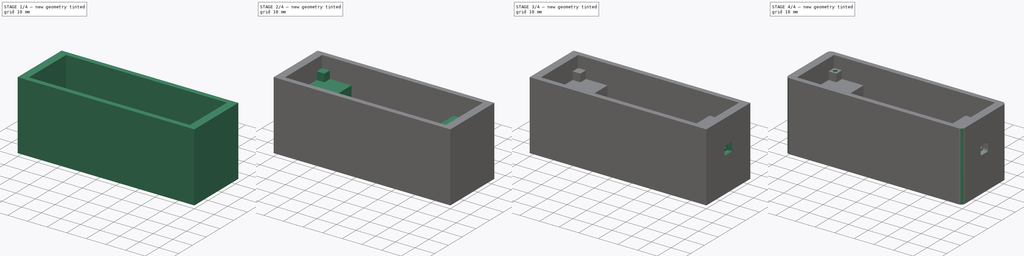
[diagram: build sequence overview — one tinted view per stage of 4, left to right]
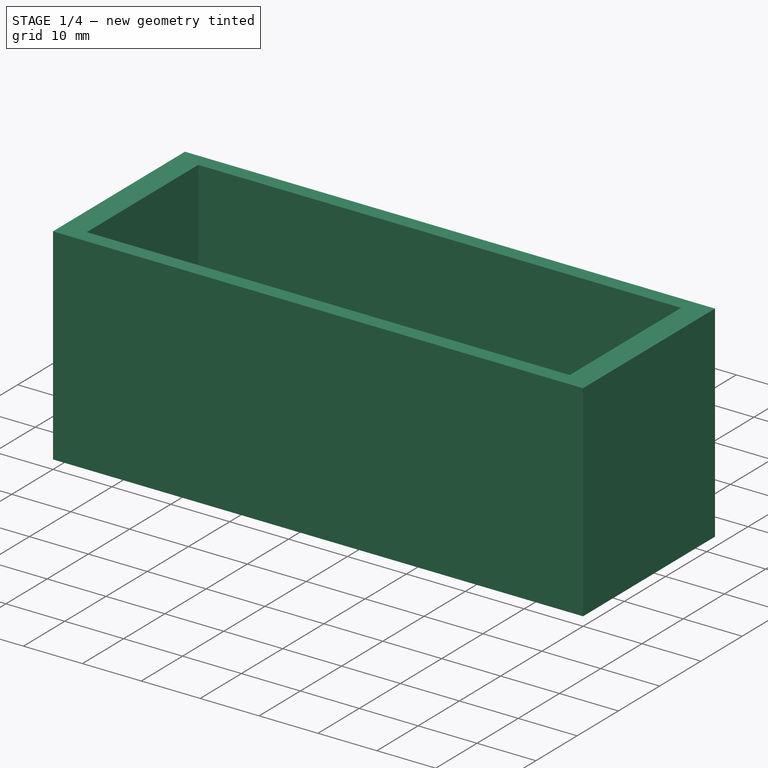
[diagram: stage 1 of 4 — iso view after this stage's code; geometry added in this stage tinted green]
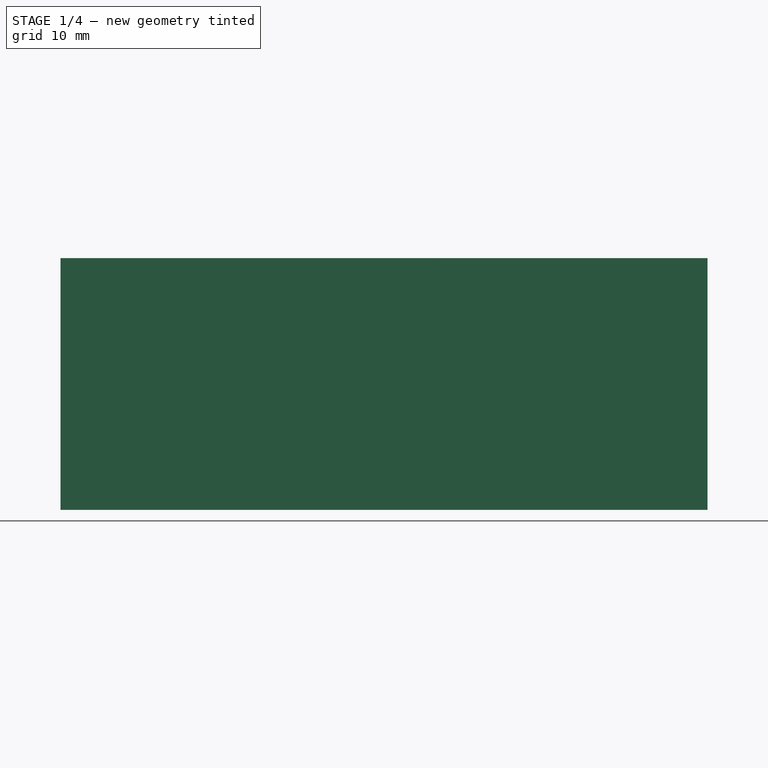
[diagram: stage 1 of 4 — front view after this stage's code; geometry added in this stage tinted green]
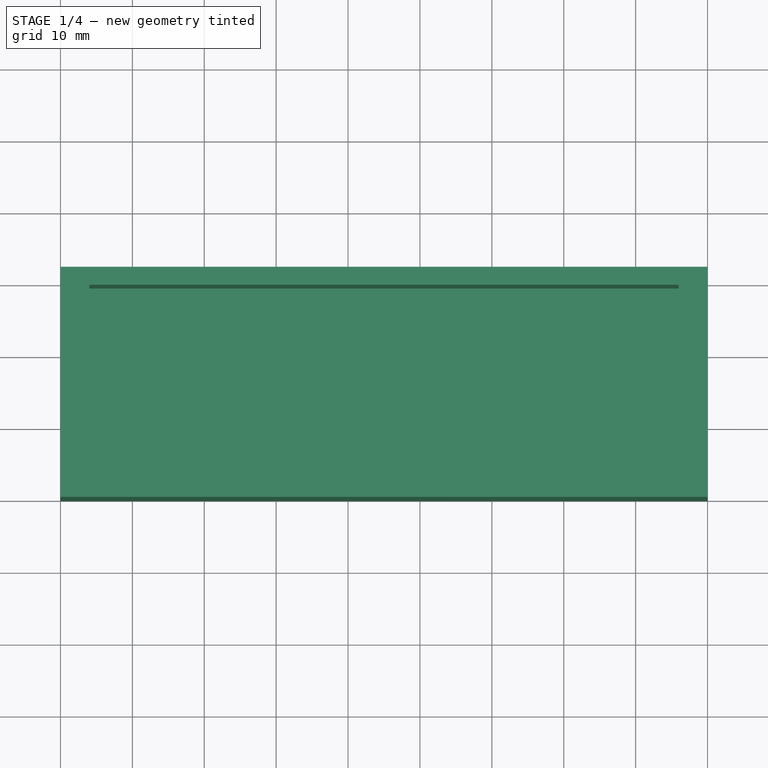
[diagram: stage 1 of 4 — top view after this stage's code; geometry added in this stage tinted green]
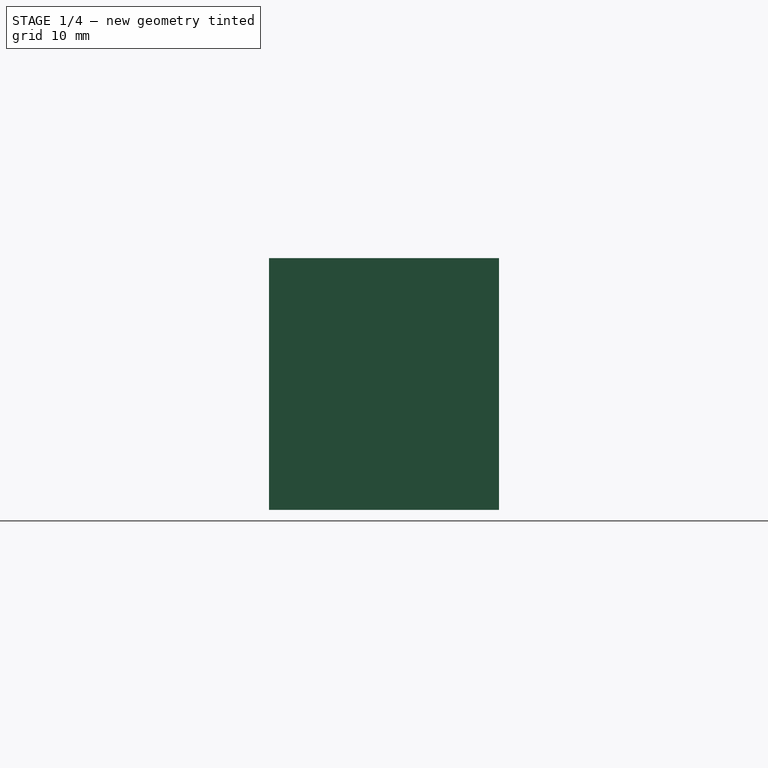
[diagram: stage 1 of 4 — right view after this stage's code; geometry added in this stage tinted green]
FCSTD DOCUMENT  (FreeCAD 0.17R13541 (Git))
Label: LaserTrip
License: All rights reserved
LicenseURL: http://en.wikipedia.org/wiki/All_rights_reserved
objects: Sketcher::SketchObject×7, PartDesign::Pocket×5, PartDesign::Pad×2, PartDesign::Fillet×2, Part::Box×1, PartDesign::FeatureBase×1, PartDesign::Body×1
note: 26 computed .brp shape members not serialized (recipe doc carries the construction recipe); baked Part::Feature solids carry a one-line shape summary decoded from their .brp

FEATURE [Part::Box] Box  label="Cube"
  AttacherType = Attacher::AttachEngine3D
  Height = 35
  Length = 90
  Width = 32
FEATURE [PartDesign::FeatureBase] BaseFeature
  BaseFeature = -> Box
FEATURE [Sketcher::SketchObject] Sketch  label="DeepSketch"
  ExternalGeometry = -> [BaseFeature]
  MapMode = 5
  Placement = pos=(0,0,35) rot=(0,0,1;0rad)
  Support = -> [BaseFeature]
  sketch-geometry (8):
    g0: LineSegment StartX=4 StartY=29.5 StartZ=0 EndX=86 EndY=29.5 EndZ=0
    g1: LineSegment StartX=86 StartY=29.5 StartZ=0 EndX=86 EndY=2.5 EndZ=0
    g2: LineSegment StartX=86 StartY=2.5 StartZ=0 EndX=4 EndY=2.5 EndZ=0
    g3: LineSegment StartX=4 StartY=2.5 StartZ=0 EndX=4 EndY=29.5 EndZ=0
    g4: GeomPoint X=4 Y=16 Z=0
    g5: GeomPoint X=45 Y=2.5 Z=0
    g6: GeomPoint X=0 Y=16 Z=0
    g7: GeomPoint X=45 Y=0 Z=0
  constraints (20):
    c: Coincident(g0,g1)
    c: Coincident(g1,g2)
    c: Coincident(g2,g3)
    c: Coincident(g3,g0)
    c: Horizontal(g0)
    c: Horizontal(g2)
    c: Vertical(g1)
    c: Vertical(g3)
    c: Distance(g3) = 27
    c: Distance(g0) = 82
    c: PointOnObject(g4,g3)
    c: PointOnObject(g5,g2)
    c: Symmetric(g2,g1,g5)
    c: Symmetric(g0,g2,g4)
    c: PointOnObject(g6,g-3)
    c: PointOnObject(g7,g-4)
    c: Symmetric(g-1,g-4,g7)
    c: Vertical(g5,g7)
    c: Symmetric(g-3,g-1,g6)
    c: Horizontal(g6,g4)
FEATURE [PartDesign::Pocket] Pocket
  BaseFeature = -> BaseFeature
  Length = 30
  Length2 = 100
  Profile = -> Sketch
  Type = 0
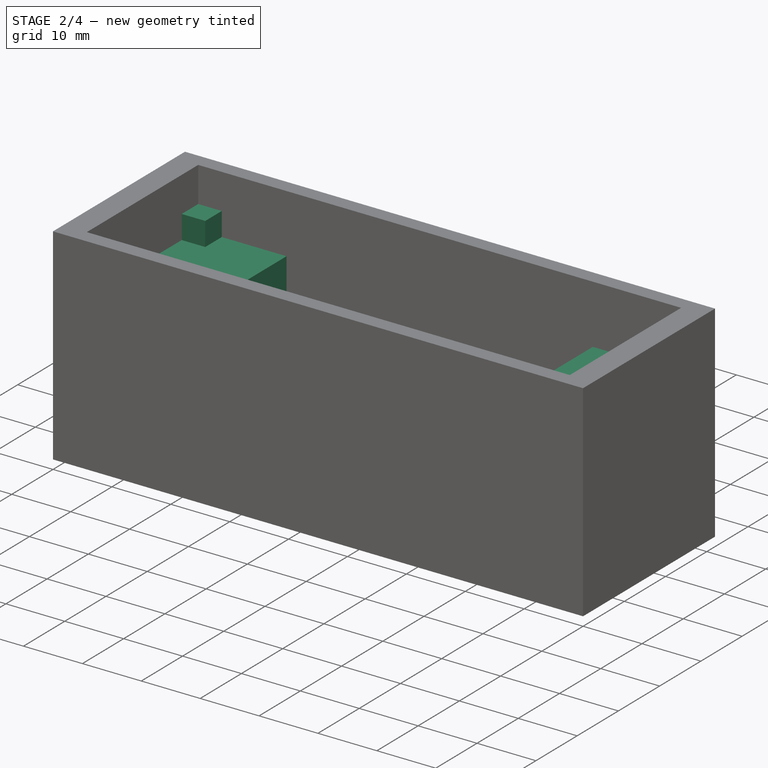
[diagram: stage 2 of 4 — iso view after this stage's code; geometry added in this stage tinted green]
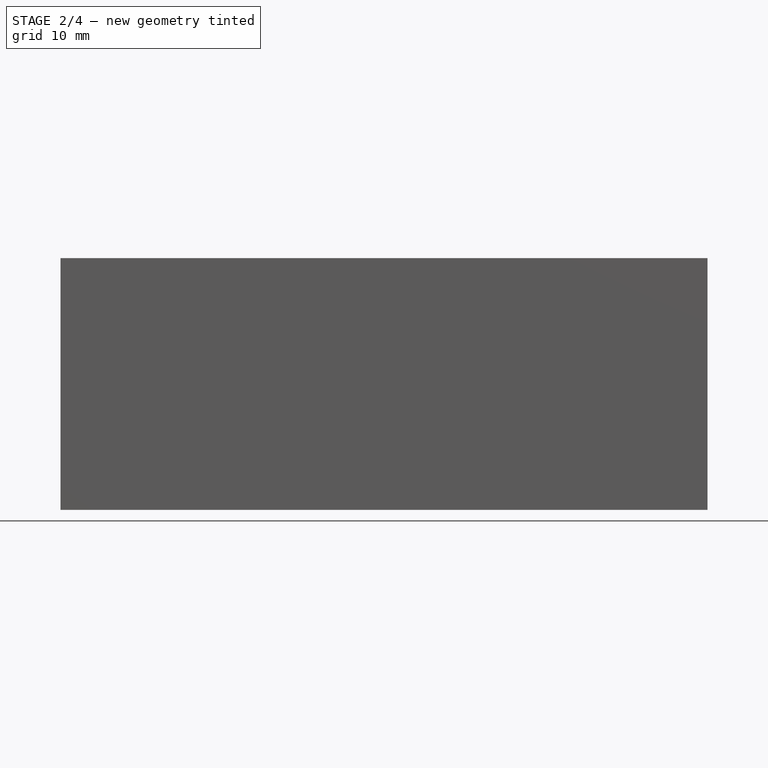
[diagram: stage 2 of 4 — front view after this stage's code; geometry added in this stage tinted green]
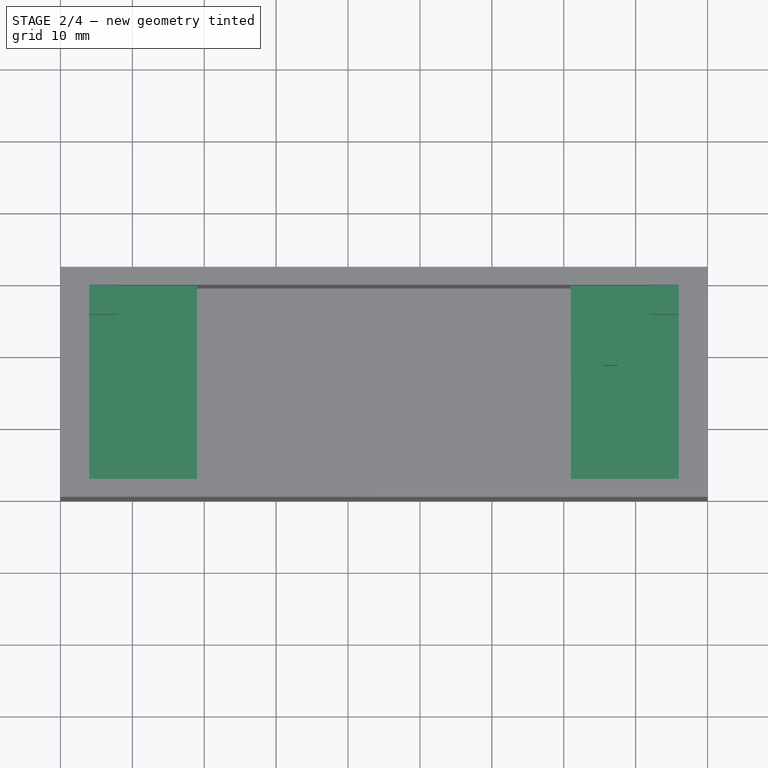
[diagram: stage 2 of 4 — top view after this stage's code; geometry added in this stage tinted green]
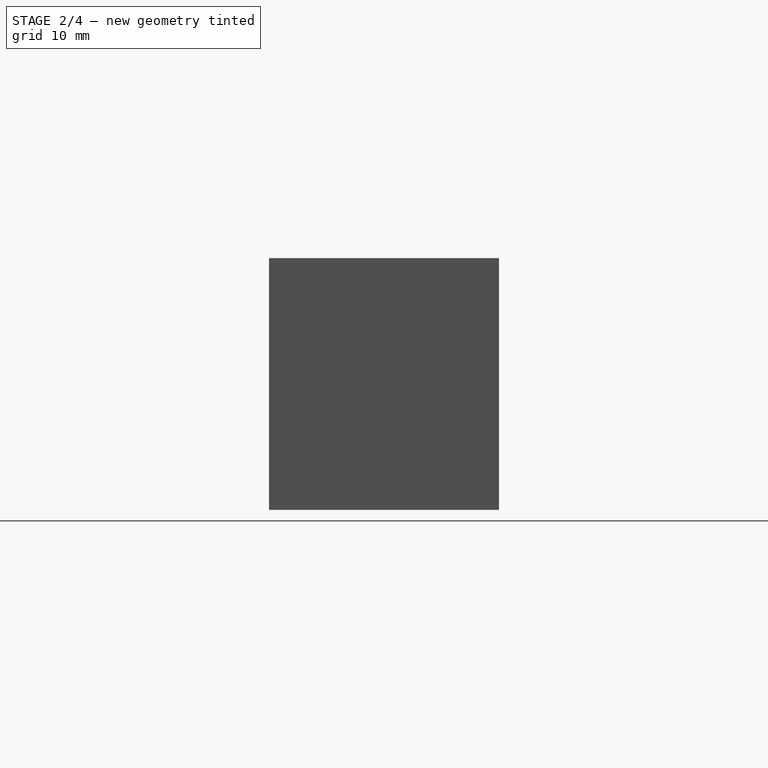
[diagram: stage 2 of 4 — right view after this stage's code; geometry added in this stage tinted green]
FEATURE [Sketcher::SketchObject] Sketch001  label="BatterySketch"
  ExternalGeometry = -> [Pocket]
  MapMode = 5
  Placement = pos=(0,0,5) rot=(0,0,1;0rad)
  Support = -> [Pocket]
  sketch-geometry (9):
    g0: LineSegment StartX=4 StartY=29.5 StartZ=0 EndX=19 EndY=29.5 EndZ=0
    g1: LineSegment StartX=19 StartY=29.5 StartZ=0 EndX=19 EndY=2.5 EndZ=0
    g2: LineSegment StartX=19 StartY=2.5 StartZ=0 EndX=4 EndY=2.5 EndZ=0
    g3: LineSegment StartX=4 StartY=2.5 StartZ=0 EndX=4 EndY=29.5 EndZ=0
    g4: LineSegment StartX=71 StartY=29.5 StartZ=0 EndX=86 EndY=29.5 EndZ=0
    g5: LineSegment StartX=86 StartY=29.5 StartZ=0 EndX=86 EndY=2.5 EndZ=0
    g6: LineSegment StartX=86 StartY=2.5 StartZ=0 EndX=71 EndY=2.5 EndZ=0
    g7: LineSegment StartX=71 StartY=2.5 StartZ=0 EndX=71 EndY=29.5 EndZ=0
    g8: GeomPoint X=45 Y=29.5 Z=0
  constraints (23):
    c: Coincident(g0,g1)
    c: Coincident(g1,g2)
    c: Coincident(g2,g3)
    c: Coincident(g3,g0)
    c: Horizontal(g0)
    c: Horizontal(g2)
    c: Vertical(g1)
    c: Vertical(g3)
    c: Coincident(g4,g5)
    c: Coincident(g5,g6)
    c: Coincident(g6,g7)
    c: Coincident(g7,g4)
    c: Horizontal(g4)
    c: Horizontal(g6)
    c: Vertical(g5)
    c: Vertical(g7)
    c: Coincident(g4,g-6)
    c: Coincident(g5,g-6)
    c: Coincident(g0,g-4)
    c: Coincident(g2,g-5)
    c: Symmetric(g0,g4,g8)
    c: Symmetric(g0,g4,g8)
    c: Distance(g0,g4) = 52
FEATURE [PartDesign::Pad] Pad
  BaseFeature = -> Pocket
  Length = 20
  Length2 = 100
  Profile = -> Sketch001
  Type = 0
FEATURE [Sketcher::SketchObject] Sketch002  label="SmallMountSketch"
  ExternalGeometry = -> [Pad]
  MapMode = 5
  Placement = pos=(0,0,25) rot=(0,0,1;0rad)
  Support = -> [Pad]
  sketch-geometry (16):
    g0: LineSegment StartX=4 StartY=29.5 StartZ=0 EndX=8 EndY=29.5 EndZ=0
    g1: LineSegment StartX=8 StartY=29.5 StartZ=0 EndX=8 EndY=25.5 EndZ=0
    g2: LineSegment StartX=8 StartY=25.5 StartZ=0 EndX=4 EndY=25.5 EndZ=0
    g3: LineSegment StartX=4 StartY=25.5 StartZ=0 EndX=4 EndY=29.5 EndZ=0
    g4: LineSegment StartX=4 StartY=6.5 StartZ=0 EndX=8 EndY=6.5 EndZ=0
    g5: LineSegment StartX=8 StartY=6.5 StartZ=0 EndX=8 EndY=2.5 EndZ=0
    g6: LineSegment StartX=8 StartY=2.5 StartZ=0 EndX=4 EndY=2.5 EndZ=0
    g7: LineSegment StartX=4 StartY=2.5 StartZ=0 EndX=4 EndY=6.5 EndZ=0
    g8: LineSegment StartX=82 StartY=29.5 StartZ=0 EndX=86 EndY=29.5 EndZ=0
    g9: LineSegment StartX=86 StartY=29.5 StartZ=0 EndX=86 EndY=25.5 EndZ=0
    g10: LineSegment StartX=86 StartY=25.5 StartZ=0 EndX=82 EndY=25.5 EndZ=0
    g11: LineSegment StartX=82 StartY=25.5 StartZ=0 EndX=82 EndY=29.5 EndZ=0
    g12: LineSegment StartX=82 StartY=6.5 StartZ=0 EndX=86 EndY=6.5 EndZ=0
    g13: LineSegment StartX=86 StartY=6.5 StartZ=0 EndX=86 EndY=2.5 EndZ=0
    g14: LineSegment StartX=86 StartY=2.5 StartZ=0 EndX=82 EndY=2.5 EndZ=0
    g15: LineSegment StartX=82 StartY=2.5 StartZ=0 EndX=82 EndY=6.5 EndZ=0
  constraints (44):
    c: Coincident(g0,g1)
    c: Coincident(g1,g2)
    c: Coincident(g2,g3)
    c: Coincident(g3,g0)
    c: Horizontal(g0)
    c: Horizontal(g2)
    c: Vertical(g1)
    c: Vertical(g3)
    c: Coincident(g4,g5)
    c: Coincident(g5,g6)
    c: Coincident(g6,g7)
    c: Coincident(g7,g4)
    c: Horizontal(g4)
    c: Horizontal(g6)
    c: Vertical(g5)
    c: Vertical(g7)
    c: Coincident(g8,g9)
    c: Coincident(g9,g10)
    c: Coincident(g10,g11)
    c: Coincident(g11,g8)
    c: Horizontal(g8)
    c: Horizontal(g10)
    c: Vertical(g9)
    c: Vertical(g11)
    c: Coincident(g12,g13)
    c: Coincident(g13,g14)
    c: Coincident(g14,g15)
    c: Coincident(g15,g12)
    c: Horizontal(g12)
    c: Horizontal(g14)
    c: Vertical(g13)
    c: Vertical(g15)
    c: Coincident(g0,g-5)
    c: Coincident(g6,g-6)
    c: Coincident(g8,g-8)
    c: Coincident(g13,g-8)
    c: Equal(g2,g1)
    c: Equal(g5,g4)
    c: Equal(g10,g11)
    c: Equal(g15,g12)
    c: Equal(g2,g4)
    c: Equal(g4,g12)
    c: Equal(g12,g10)
    c: Distance(g11) = 4
FEATURE [PartDesign::Pad] Pad001  label="PBCMount"
  BaseFeature = -> Pad
  Length = 4
  Length2 = 100
  Profile = -> Sketch002
  Type = 0
FEATURE [Sketcher::SketchObject] Sketch003  label="TunnelSketch"
  ExternalGeometry = -> [Pad001]
  MapMode = 5
  Placement = pos=(0,0,25) rot=(0,0,1;0rad)
  Support = -> [Pad001]
  sketch-geometry (7):
    g0: LineSegment StartX=75.5 StartY=18.5 StartZ=0 EndX=77.5 EndY=18.5 EndZ=0
    g1: LineSegment StartX=77.5 StartY=18.5 StartZ=0 EndX=77.5 EndY=13.5 EndZ=0
    g2: LineSegment StartX=77.5 StartY=13.5 StartZ=0 EndX=75.5 EndY=13.5 EndZ=0
    g3: LineSegment StartX=75.5 StartY=13.5 StartZ=0 EndX=75.5 EndY=18.5 EndZ=0
    g4: GeomPoint X=76.5 Y=16 Z=0
    g5: GeomPoint X=76.5 Y=29.5 Z=0
    g6: GeomPoint X=76.5 Y=2.5 Z=0
  constraints (16):
    c: Coincident(g0,g1)
    c: Coincident(g1,g2)
    c: Coincident(g2,g3)
    c: Coincident(g3,g0)
    c: Horizontal(g0)
    c: Horizontal(g2)
    c: Vertical(g1)
    c: Vertical(g3)
    c: Distance(g2) = 2
    c: Distance(g1) = 5
    c: Symmetric(g0,g1,g4)
    c: PointOnObject(g5,g-3)
    c: PointOnObject(g6,g-4)
    c: Symmetric(g-4,g-4,g6)
    c: Symmetric(g-3,g-3,g5)
    c: Symmetric(g5,g6,g4)
FEATURE [PartDesign::Pocket] Pocket001  label="InnerTunnel"
  BaseFeature = -> Pad001
  Length = 6
  Length2 = 100
  Profile = -> Sketch003
  Type = 0
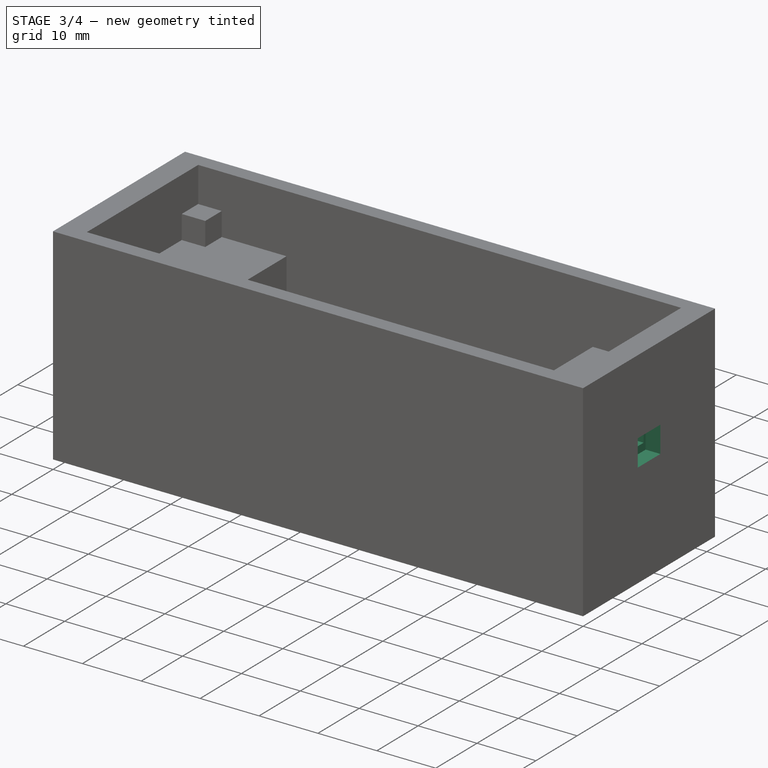
[diagram: stage 3 of 4 — iso view after this stage's code; geometry added in this stage tinted green]
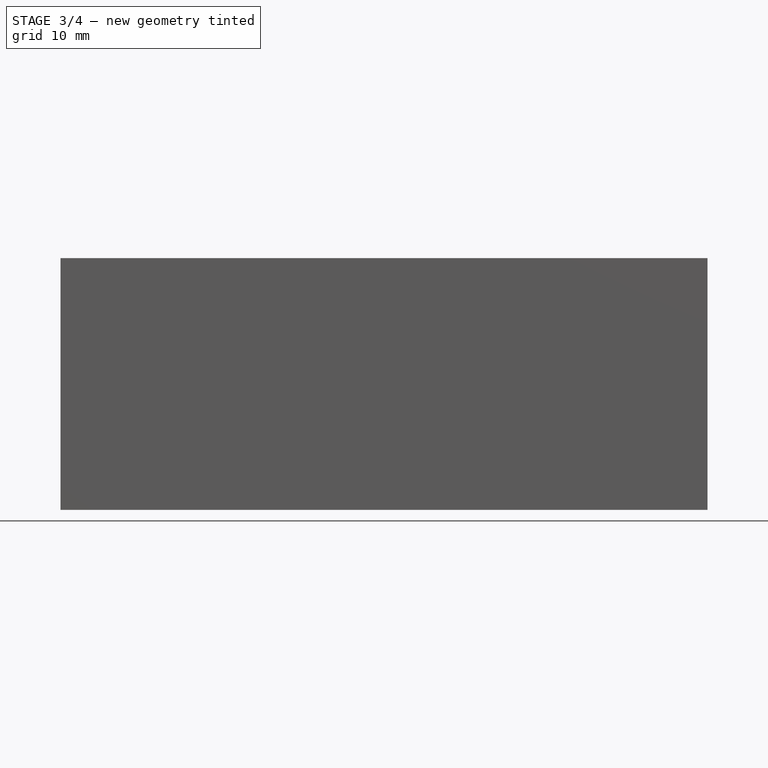
[diagram: stage 3 of 4 — front view after this stage's code; geometry added in this stage tinted green]
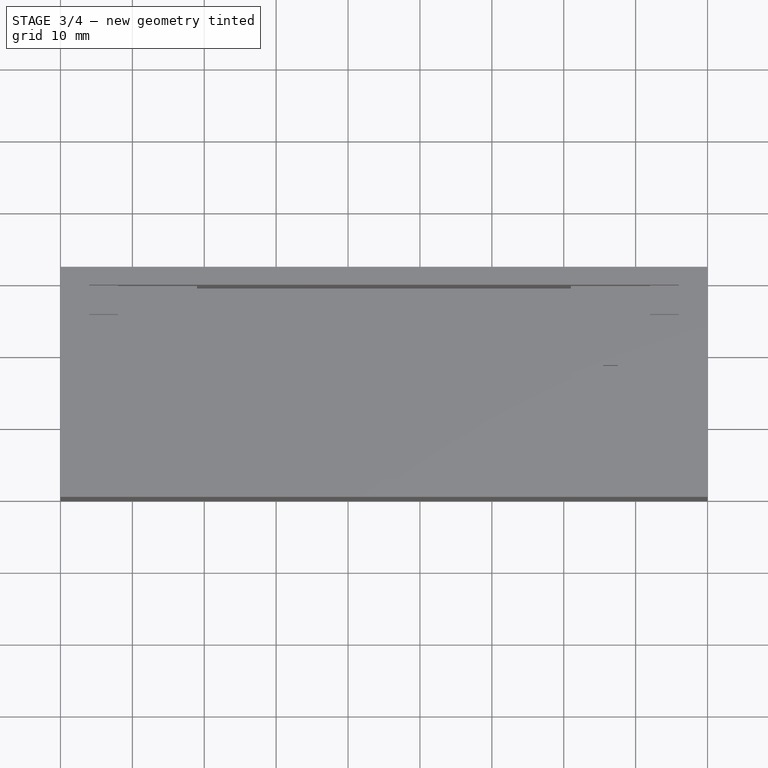
[diagram: stage 3 of 4 — top view after this stage's code; geometry added in this stage tinted green]
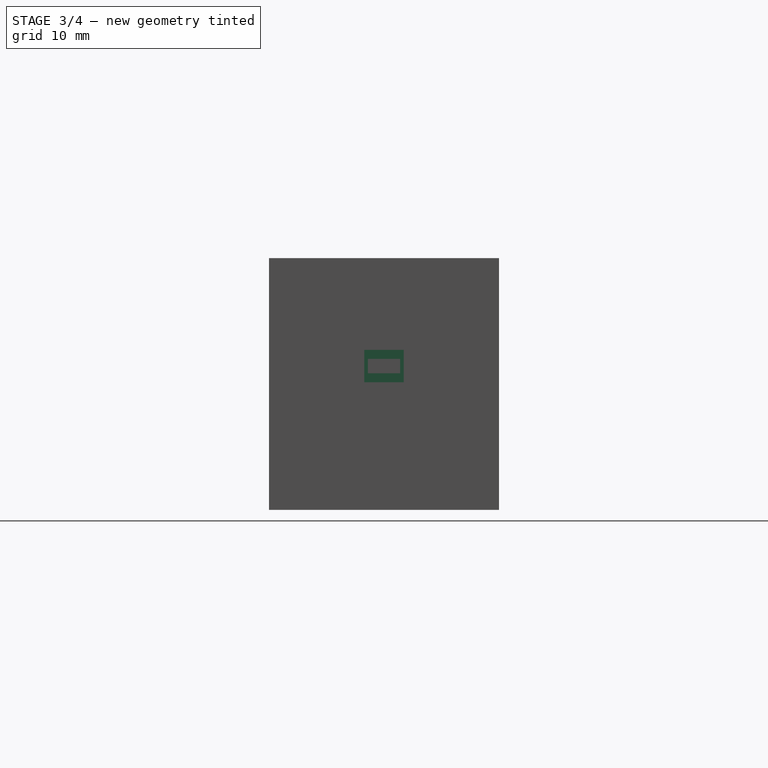
[diagram: stage 3 of 4 — right view after this stage's code; geometry added in this stage tinted green]
FEATURE [Sketcher::SketchObject] Sketch004  label="PhotoOutSketch"
  ExternalGeometry = -> [Pocket001]
  MapMode = 5
  Placement = pos=(90,0,0) rot=(0.57735,0.57735,0.57735;2.0944rad)
  Support = -> [Pocket001]
  sketch-geometry (7):
    g0: LineSegment StartX=13.75 StartY=21 StartZ=0 EndX=18.25 EndY=21 EndZ=0
    g1: LineSegment StartX=18.25 StartY=21 StartZ=0 EndX=18.25 EndY=19 EndZ=0
    g2: LineSegment StartX=18.25 StartY=19 StartZ=0 EndX=13.75 EndY=19 EndZ=0
    g3: LineSegment StartX=13.75 StartY=19 StartZ=0 EndX=13.75 EndY=21 EndZ=0
    g4: GeomPoint X=16 Y=20 Z=0
    g5: GeomPoint X=0 Y=20 Z=0
    g6: GeomPoint X=32 Y=20 Z=0
  constraints (16):
    c: Coincident(g0,g1)
    c: Coincident(g1,g2)
    c: Coincident(g2,g3)
    c: Coincident(g3,g0)
    c: Horizontal(g0)
    c: Horizontal(g2)
    c: Vertical(g1)
    c: Vertical(g3)
    c: Distance(g0) = 4.5
    c: Distance(g1) = 2
    c: Symmetric(g0,g1,g4)
    c: PointOnObject(g5,g-3)
    c: PointOnObject(g6,g-4)
    c: Horizontal(g6,g5)
    c: Symmetric(g5,g6,g4)
    c: Distance(g-4,g6) = 15
FEATURE [PartDesign::Pocket] Pocket002  label="Tunnel"
  BaseFeature = -> Pocket001
  Length = 13
  Length2 = 100
  Profile = -> Sketch004
  Type = 0
FEATURE [Sketcher::SketchObject] Sketch005  label="PhotoSketch"
  ExternalGeometry = -> [Pocket002]
  MapMode = 5
  Placement = pos=(90,0,0) rot=(0.57735,0.57735,0.57735;2.0944rad)
  Support = -> [Pocket002]
  sketch-geometry (5):
    g0: GeomPoint X=16 Y=20 Z=0
    g1: LineSegment StartX=13.25 StartY=22.25 StartZ=0 EndX=18.75 EndY=22.25 EndZ=0
    g2: LineSegment StartX=18.75 StartY=22.25 StartZ=0 EndX=18.75 EndY=17.75 EndZ=0
    g3: LineSegment StartX=18.75 StartY=17.75 StartZ=0 EndX=13.25 EndY=17.75 EndZ=0
    g4: LineSegment StartX=13.25 StartY=17.75 StartZ=0 EndX=13.25 EndY=22.25 EndZ=0
  constraints (12):
    c: Symmetric(g-5,g-6,g0)
    c: Coincident(g1,g2)
    c: Coincident(g2,g3)
    c: Coincident(g3,g4)
    c: Coincident(g4,g1)
    c: Horizontal(g1)
    c: Horizontal(g3)
    c: Vertical(g2)
    c: Vertical(g4)
    c: Distance(g2) = 4.5
    c: Distance(g1) = 5.5
    c: Symmetric(g1,g3,g0)
FEATURE [PartDesign::Pocket] Pocket003  label="Photo"
  BaseFeature = -> Pocket002
  Length = 2.5
  Length2 = 100
  Profile = -> Sketch005
  Type = 0
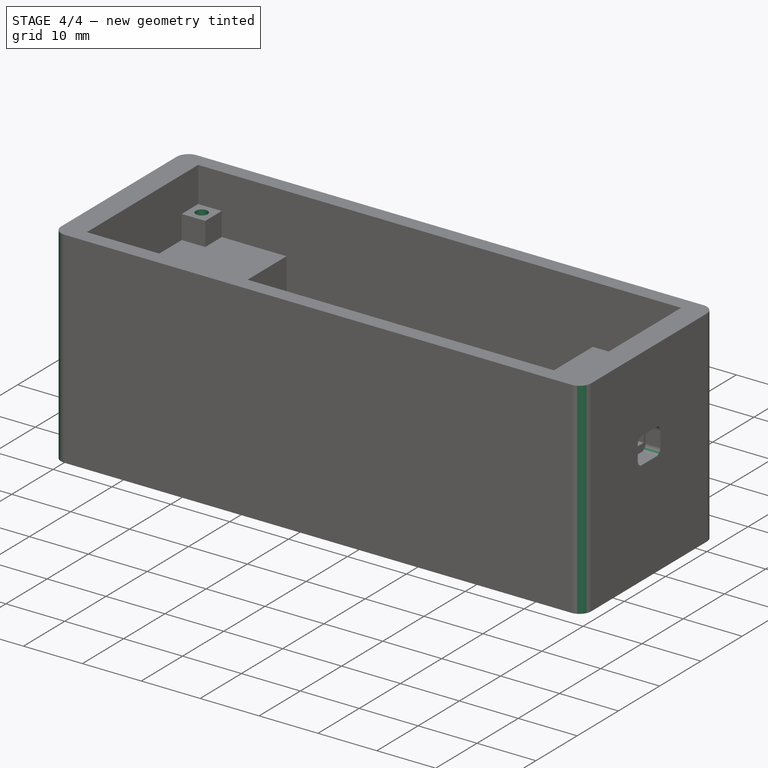
[diagram: stage 4 of 4 — iso view after this stage's code; geometry added in this stage tinted green]
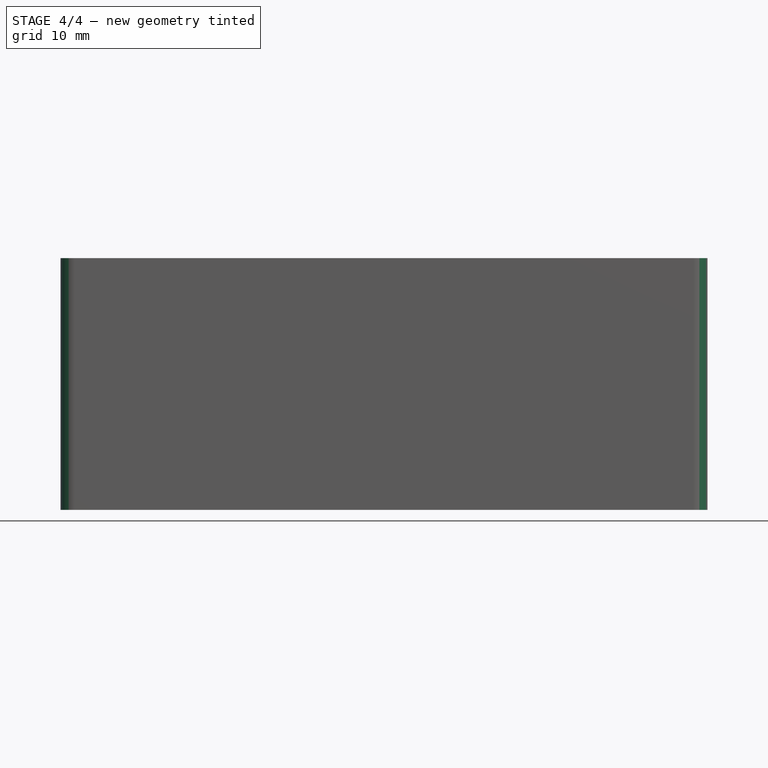
[diagram: stage 4 of 4 — front view after this stage's code; geometry added in this stage tinted green]
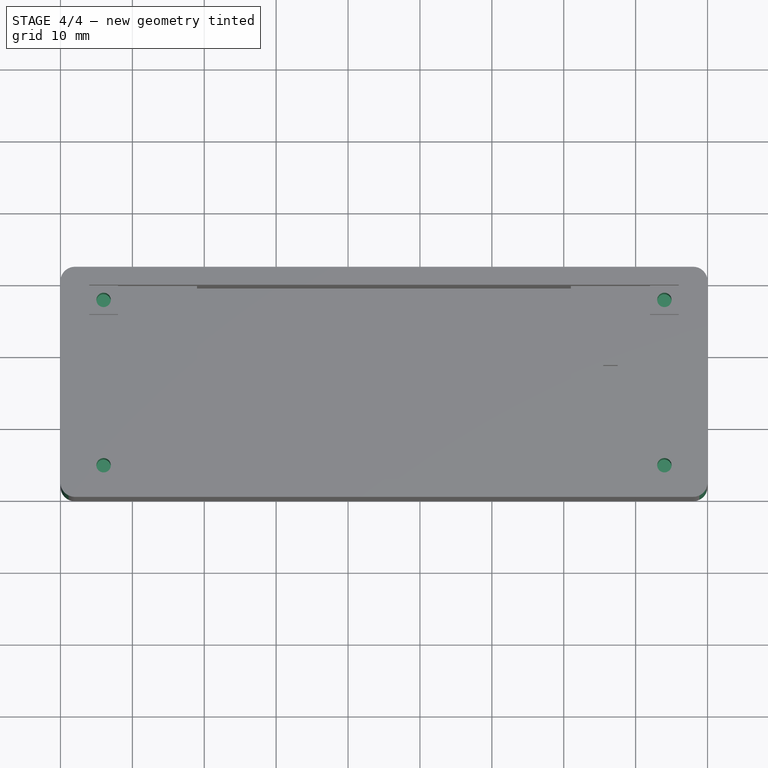
[diagram: stage 4 of 4 — top view after this stage's code; geometry added in this stage tinted green]
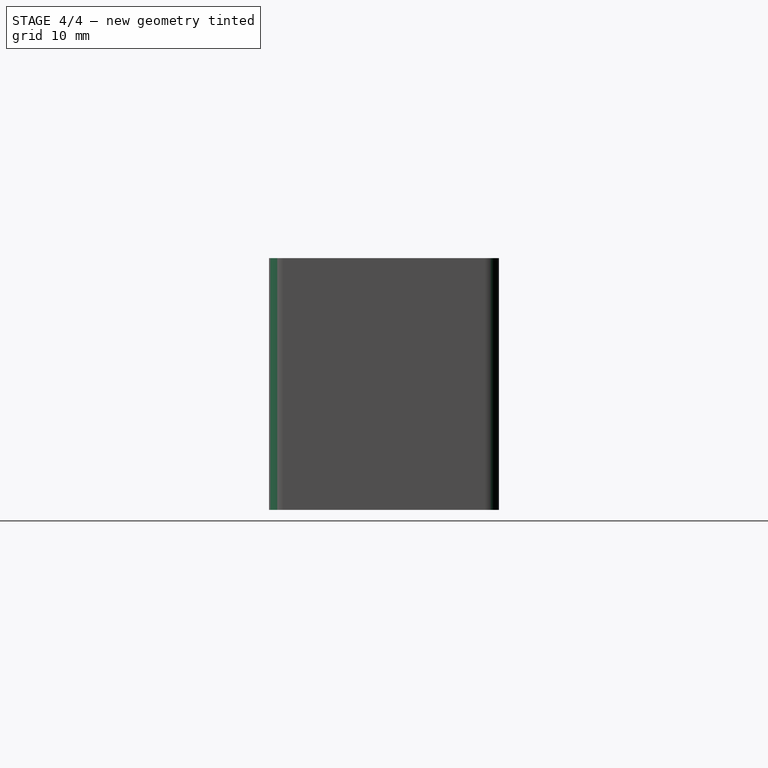
[diagram: stage 4 of 4 — right view after this stage's code; geometry added in this stage tinted green]
FEATURE [PartDesign::Fillet] Fillet
  Base = -> Pocket003 [Edge54,Edge58,Edge53,Edge56]
  BaseFeature = -> Pocket003
  Radius = 1
FEATURE [Sketcher::SketchObject] Sketch006  label="ScrewsSketch"
  ExternalGeometry = -> [Fillet]
  MapMode = 5
  Placement = pos=(0,0,29) rot=(0,0,1;0rad)
  Support = -> [Fillet]
  sketch-geometry (4):
    g0: Circle CenterX=84 CenterY=27.5 CenterZ=0 NormalX=0 NormalY=0 NormalZ=1 AngleXU=0 Radius=1
    g1: Circle CenterX=84 CenterY=4.5 CenterZ=0 NormalX=0 NormalY=0 NormalZ=1 AngleXU=0 Radius=1
    g2: Circle CenterX=6 CenterY=27.5 CenterZ=0 NormalX=0 NormalY=0 NormalZ=1 AngleXU=0 Radius=1
    g3: Circle CenterX=6 CenterY=4.5 CenterZ=0 NormalX=0 NormalY=0 NormalZ=1 AngleXU=0 Radius=1
  constraints (8):
    c: Radius(g0) = 1
    c: Symmetric(g-3,g-4,g0)
    c: Symmetric(g-6,g-5,g1)
    c: Equal(g1,g0)
    c: Symmetric(g-8,g-7,g2)
    c: Symmetric(g-9,g-10,g3)
    c: Equal(g2,g3)
    c: Equal(g3,g1)
FEATURE [PartDesign::Pocket] Pocket004  label="ScrewsPocket"
  BaseFeature = -> Fillet
  Length = 12
  Length2 = 100
  Profile = -> Sketch006
  Type = 0
FEATURE [PartDesign::Fillet] Fillet001
  Base = -> Pocket004 [Edge31,Edge9,Edge12,Edge40]
  BaseFeature = -> Pocket004
  Radius = 2
FEATURE [PartDesign::Body] Body
  BaseFeature = -> Box
  Group = -> [BaseFeature,Sketch,Pocket,Sketch001,Pad,Sketch002,Pad001,Sketch003,Pocket001,Sketch004,Pocket002,Sketch005,Pocket003,Fillet,Sketch006,Pocket004,Fillet001]
  Origin = -> Origin
  Tip = -> Fillet001
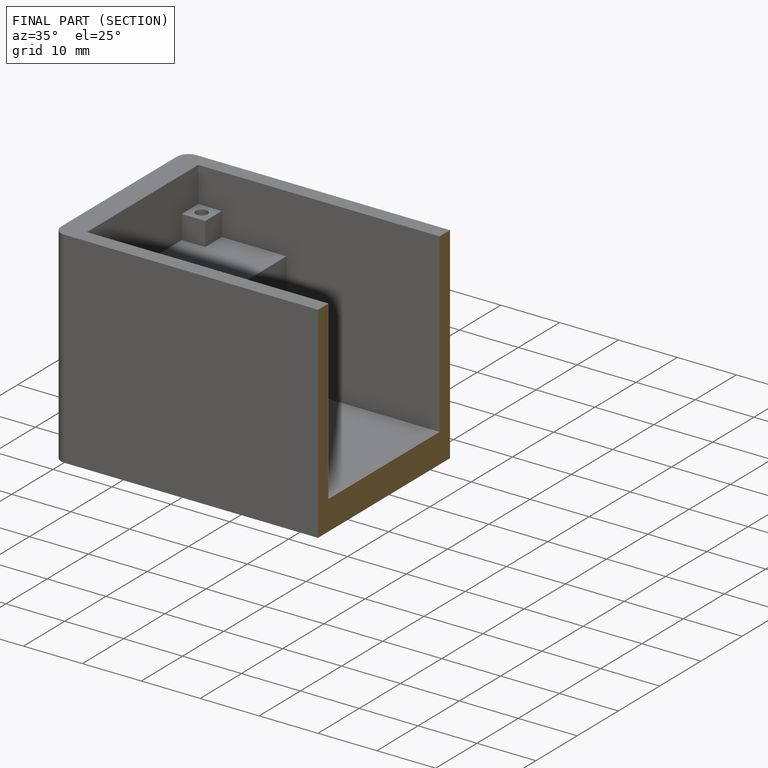
[diagram: finished part — half-section view (interior)]
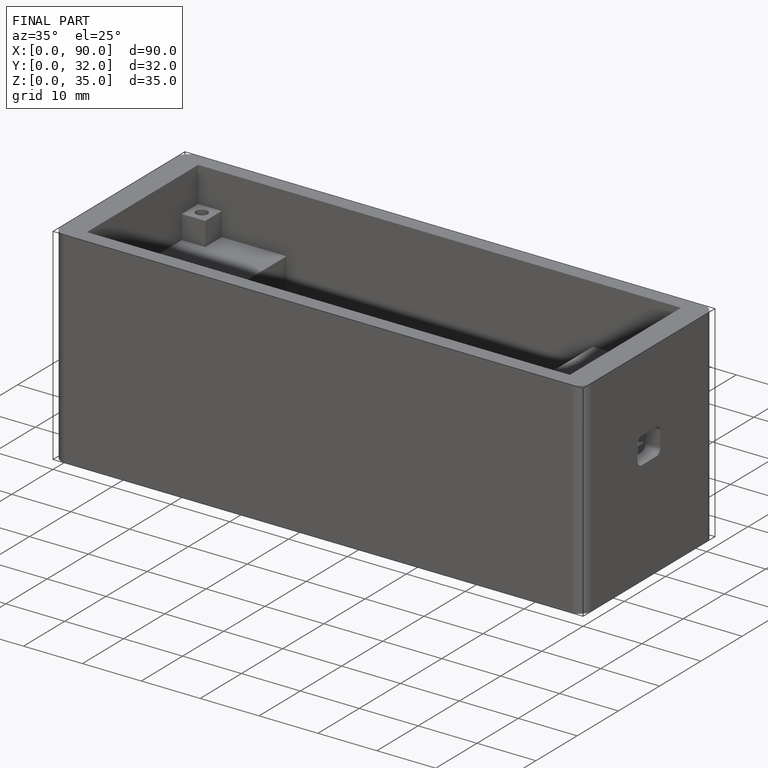
[diagram: finished part — iso view with bounding-box wireframe]
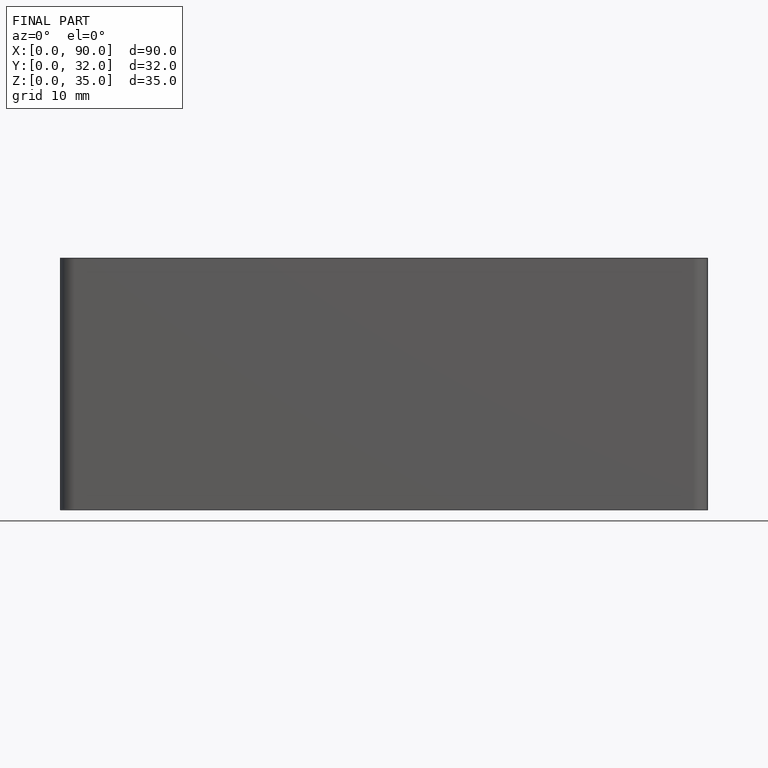
[diagram: finished part — front view with bounding-box wireframe]
